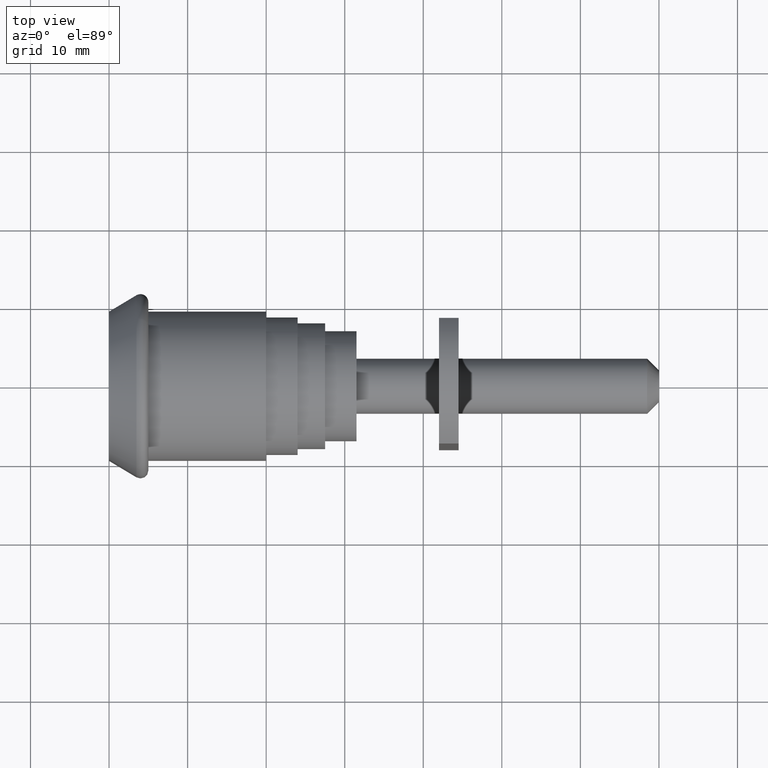
[diagram: clean part render]
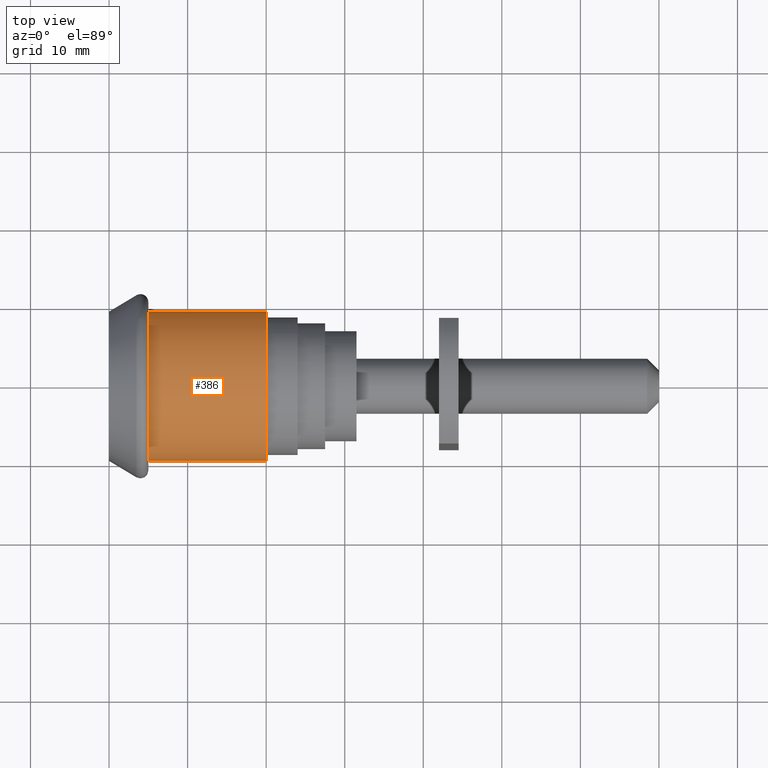
[diagram: same view with one face highlighted and labeled with its STEP entity id]
A machine part, top view. The second image highlights one B-rep face of the part: STEP entity #386.
In plain terms, the highlighted cylindrical surface (bore or boss wall) has radius 9.5 mm, axis along (1, 0, 0).
Its self-contained STEP definition (entity closure, byte-faithful):
#327=CARTESIAN_POINT('',(19.999999999999091,9.499999999961801,0.0));
#328=VERTEX_POINT('',#327);
#329=CARTESIAN_POINT('',(19.999999999999091,-9.499999999961801,0.0));
#330=VERTEX_POINT('',#329);
#331=CARTESIAN_POINT('',(19.999999999999091,0.0,0.0));
#332=DIRECTION('',(1.0,0.0,0.0));
#333=DIRECTION('',(0.0,1.0,0.0));
#334=AXIS2_PLACEMENT_3D('',#331,#332,#333);
#335=CIRCLE('',#334,9.499999999961801);
#336=EDGE_CURVE('',#328,#330,#335,.T.);
#338=CARTESIAN_POINT('',(19.999999999999091,0.0,0.0));
#339=DIRECTION('',(1.0,0.0,0.0));
#340=DIRECTION('',(0.0,1.0,0.0));
#341=AXIS2_PLACEMENT_3D('',#338,#339,#340);
#342=CIRCLE('',#341,9.499999999961801);
#343=EDGE_CURVE('',#330,#328,#342,.T.);
#352=CARTESIAN_POINT('',(19.999999999999091,0.0,0.0));
#353=DIRECTION('',(1.0,0.0,0.0));
#354=DIRECTION('',(0.0,1.0,0.0));
#355=AXIS2_PLACEMENT_3D('',#352,#353,#354);
#356=CYLINDRICAL_SURFACE('',#355,9.499999999961801);
#357=CARTESIAN_POINT('',(4.999999999979991,9.499999999961801,0.0));
#358=VERTEX_POINT('',#357);
#359=CARTESIAN_POINT('',(19.999999999999091,9.499999999961801,0.0));
#360=DIRECTION('',(-1.0,0.0,0.0));
#361=VECTOR('',#360,15.000000000019099);
#362=LINE('',#359,#361);
#363=EDGE_CURVE('',#328,#358,#362,.T.);
#364=ORIENTED_EDGE('',*,*,#363,.T.);
#365=CARTESIAN_POINT('',(4.999999999979991,-9.499999999961801,0.0));
#366=VERTEX_POINT('',#365);
#367=CARTESIAN_POINT('',(4.999999999979991,0.0,0.0));
#368=DIRECTION('',(1.0,0.0,0.0));
#369=DIRECTION('',(0.0,1.0,0.0));
#370=AXIS2_PLACEMENT_3D('',#367,#368,#369);
#371=CIRCLE('',#370,9.499999999961801);
#372=EDGE_CURVE('',#358,#366,#371,.T.);
#373=ORIENTED_EDGE('',*,*,#372,.T.);
#374=CARTESIAN_POINT('',(4.999999999979991,0.0,0.0));
#375=DIRECTION('',(1.0,0.0,0.0));
#376=DIRECTION('',(0.0,1.0,0.0));
#377=AXIS2_PLACEMENT_3D('',#374,#375,#376);
#378=CIRCLE('',#377,9.499999999961801);
#379=EDGE_CURVE('',#366,#358,#378,.T.);
#380=ORIENTED_EDGE('',*,*,#379,.T.);
#381=ORIENTED_EDGE('',*,*,#363,.F.);
#382=ORIENTED_EDGE('',*,*,#343,.F.);
#383=ORIENTED_EDGE('',*,*,#336,.F.);
#384=EDGE_LOOP('',(#364,#373,#380,#381,#382,#383));
#385=FACE_OUTER_BOUND('',#384,.T.);
#386=ADVANCED_FACE('',(#385),#356,.T.);